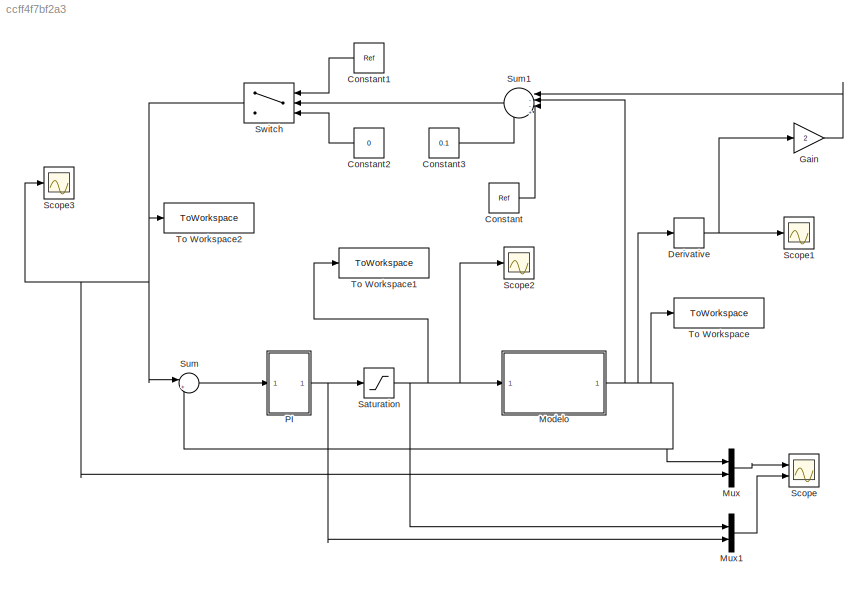
MODEL slx_ccff4f7bf2a3
KIND model
CONFIG AbsTol = auto
CONFIG EnableMultiTasking = off
CONFIG FixedStep = 0.01
CONFIG MaxStep = auto
CONFIG MinStep = auto
CONFIG RelTol = 1e-3
CONFIG SampleTimeConstraint = Unconstrained
CONFIG SolverName = ode1
CONFIG StartTime = 0.0
CONFIG StopTime = T_end
BLOCK [Constant] Constant
  Value = Ref
BLOCK [Constant] Constant1
  Value = Ref
BLOCK [Constant] Constant2
  Value = 0
BLOCK [Constant] Constant3
  Value = 0.1
BLOCK [Derivative] Derivative
BLOCK [Gain] Gain
  Gain = 2
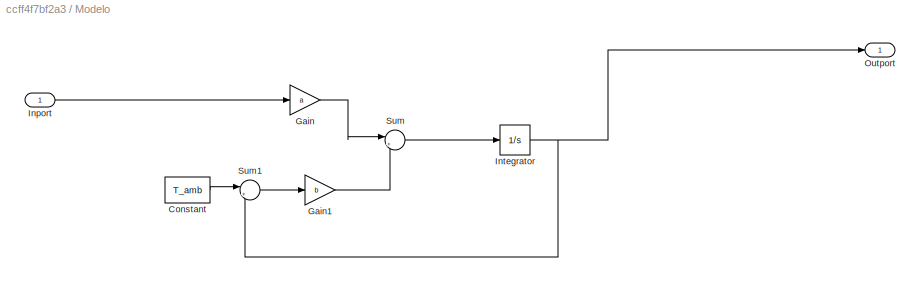
BLOCK [SubSystem] Modelo
  Ports = [1, 1]
  RequestExecContextInheritance = off
BLOCK [Constant] Modelo/Constant
  Value = T_amb
BLOCK [Gain] Modelo/Gain
  Gain = a
BLOCK [Gain] Modelo/Gain1
  Gain = b
BLOCK [Inport] Modelo/Inport
BLOCK [Integrator] Modelo/Integrator
  InitialCondition = T_ini
  Ports = [1, 1]
BLOCK [Outport] Modelo/Outport
BLOCK [Sum] Modelo/Sum
  Inputs = |++
  Ports = [2, 1]
BLOCK [Sum] Modelo/Sum1
  Inputs = |+-
  Ports = [2, 1]
BLOCK [Mux] Mux
  DisplayOption = bar
  Inputs = 2
  Ports = [2, 1]
BLOCK [Mux] Mux1
  DisplayOption = bar
  Inputs = 2
  Ports = [2, 1]
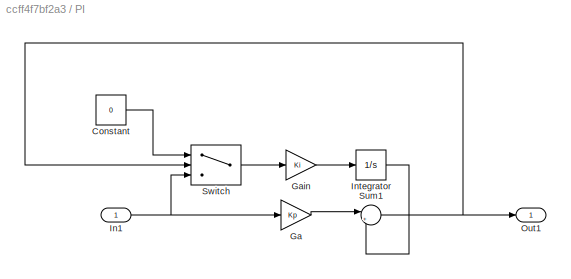
BLOCK [SubSystem] PI
  Ports = [1, 1]
  RequestExecContextInheritance = off
BLOCK [Constant] PI/Constant
  Value = 0
BLOCK [Gain] PI/Ga
  Gain = Kp
BLOCK [Gain] PI/Gain
  Gain = Ki
BLOCK [Inport] PI/In1
BLOCK [Integrator] PI/Integrator
  Ports = [1, 1]
BLOCK [Outport] PI/Out1
BLOCK [Sum] PI/Sum1
  Inputs = |++
  Ports = [2, 1]
BLOCK [Switch] PI/Switch
  InputSameDT = off
  SaturateOnIntegerOverflow = off
  Threshold = 255
BLOCK [Saturate] Saturation
  LowerLimit = 0
  UpperLimit = 255
BLOCK [Scope] Scope
  Floating = off
  NumInputPorts = 2
  Ports = [2]
  ScopeSpecificationString = Simulink.scopes.TimeScopeBlockCfg('CurrentConfiguration', extmgr.ConfigurationSet(extmgr.Configuration('Core','General UI',true),extmgr.Configuration('Core','Source UI',true),extmgr.Configuration('Sources','WiredSimulink',true,'DataLoggingVariableName','ScopeData1'),extmgr.Configuration('Visuals','Time Domain',true,'SerializedDisplays',{struct('MinYLimReal','26.42121','MaxYLimReal','38.10911','YLa...<+2161ch>
BLOCK [Scope] Scope1
  Floating = off
  NumInputPorts = 1
  Ports = [1]
  ScopeSpecificationString = Simulink.scopes.TimeScopeBlockCfg('CurrentConfiguration', extmgr.ConfigurationSet(extmgr.Configuration('Core','General UI',true),extmgr.Configuration('Core','Source UI',true),extmgr.Configuration('Sources','WiredSimulink',true,'DataLoggingVariableName','ScopeData1'),extmgr.Configuration('Visuals','Time Domain',true,'SerializedDisplays',{struct('MinYLimReal','-0.00765','MaxYLimReal','0.06885','YLab...<+1398ch>
BLOCK [Scope] Scope2
  Floating = off
  NumInputPorts = 1
  Ports = [1]
  ScopeSpecificationString = Simulink.scopes.TimeScopeBlockCfg('CurrentConfiguration', extmgr.ConfigurationSet(extmgr.Configuration('Core','General UI',true),extmgr.Configuration('Core','Source UI',true),extmgr.Configuration('Sources','WiredSimulink',true,'DataLoggingVariableName','ScopeData3'),extmgr.Configuration('Visuals','Time Domain',true,'SerializedDisplays',{struct('MinYLimReal','-1.00000','MaxYLimReal','1.00000','YLab...<+1369ch>
BLOCK [Scope] Scope3
  Floating = off
  NumInputPorts = 1
  Ports = [1]
  ScopeSpecificationString = Simulink.scopes.TimeScopeBlockCfg('CurrentConfiguration', extmgr.ConfigurationSet(extmgr.Configuration('Core','General UI',true),extmgr.Configuration('Core','Source UI',true),extmgr.Configuration('Sources','WiredSimulink',true,'DataLoggingVariableName','ScopeData2'),extmgr.Configuration('Visuals','Time Domain',true,'SerializedDisplays',{struct('MinYLimReal','-4.5','MaxYLimReal','40.5','YLabelReal'...<+1345ch>
BLOCK [Sum] Sum
  Inputs = |+-
  Ports = [2, 1]
BLOCK [Sum] Sum1
  Inputs = |--++
  NameLocation = top
  Ports = [4, 1]
BLOCK [Switch] Switch
  InputSameDT = off
  NameLocation = top
  SaturateOnIntegerOverflow = off
BLOCK [ToWorkspace] To Workspace
  FixptAsFi = on
  MaxDataPoints = inf
  Ports = [1]
  SampleTime = -1
  VariableName = T
BLOCK [ToWorkspace] To Workspace1
  FixptAsFi = on
  MaxDataPoints = inf
  Ports = [1]
  SampleTime = -1
  VariableName = u
BLOCK [ToWorkspace] To Workspace2
  FixptAsFi = on
  MaxDataPoints = inf
  Ports = [1]
  SampleTime = -1
  VariableName = Ref
LINE Constant1:1 -> Switch:1
LINE Constant2:1 -> Switch:3
LINE Constant3:1 -> Sum1:4
LINE Constant:1 -> Sum1:3
NET Derivative:1 -> Gain:1, Scope1:1
LINE Gain:1 -> Sum1:1
LINE Modelo/Constant:1 -> Modelo/Sum1:1
LINE Modelo/Gain1:1 -> Modelo/Sum:2
LINE Modelo/Gain:1 -> Modelo/Sum:1
LINE Modelo/Inport:1 -> Modelo/Gain:1
NET Modelo/Integrator:1 -> Modelo/Outport:1, Modelo/Sum1:2
LINE Modelo/Sum1:1 -> Modelo/Gain1:1
LINE Modelo/Sum:1 -> Modelo/Integrator:1
NET Modelo:1 -> Derivative:1, Mux:1, Sum1:2, Sum:2, To Workspace:1
LINE Mux1:1 -> Scope:2
LINE Mux:1 -> Scope:1
LINE PI/Constant:1 -> PI/Switch:1
LINE PI/Ga:1 -> PI/Sum1:1
LINE PI/Gain:1 -> PI/Integrator:1
NET PI/In1:1 -> PI/Ga:1, PI/Switch:3
LINE PI/Integrator:1 -> PI/Sum1:2
NET PI/Sum1:1 -> PI/Out1:1, PI/Switch:2
LINE PI/Switch:1 -> PI/Gain:1
NET PI:1 -> Mux1:2, Saturation:1
NET Saturation:1 -> Modelo:1, Mux1:1, Scope2:1, To Workspace1:1
LINE Sum1:1 -> Switch:2
LINE Sum:1 -> PI:1
NET Switch:1 -> Mux:2, Scope3:1, Sum:1, To Workspace2:1
note: NET lines group one-source signal fan-out (src -> all destinations, sorted); 1:1 wires keep LINE
